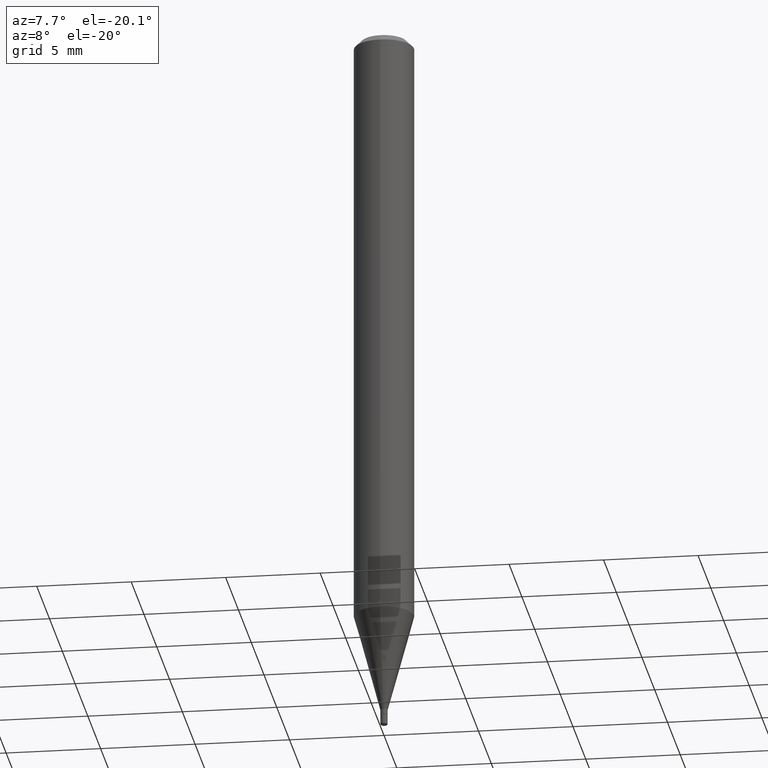
[diagram: clean part render]
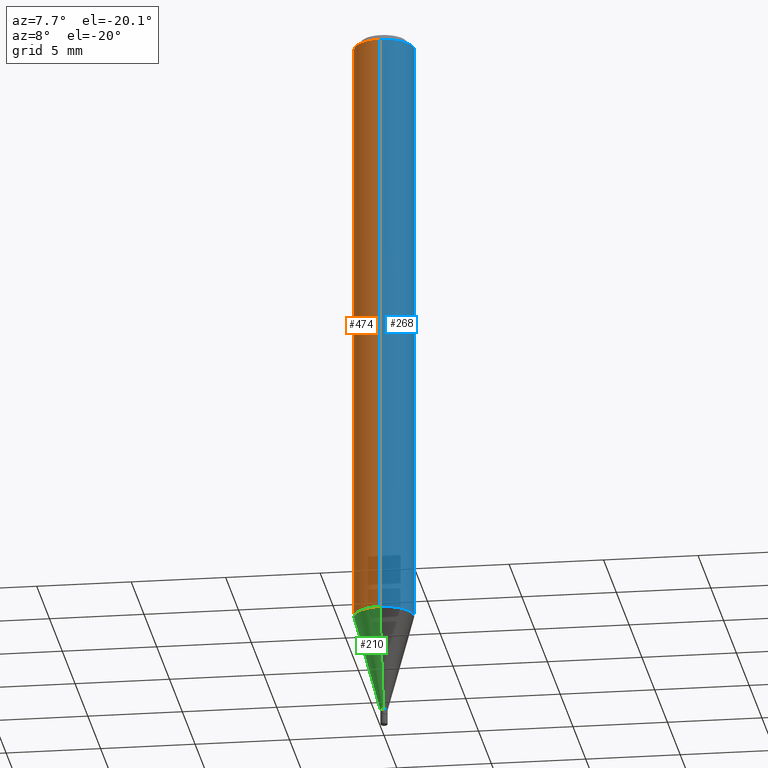
[diagram: same view with three faces highlighted in distinct colors, each labeled with its STEP entity id]
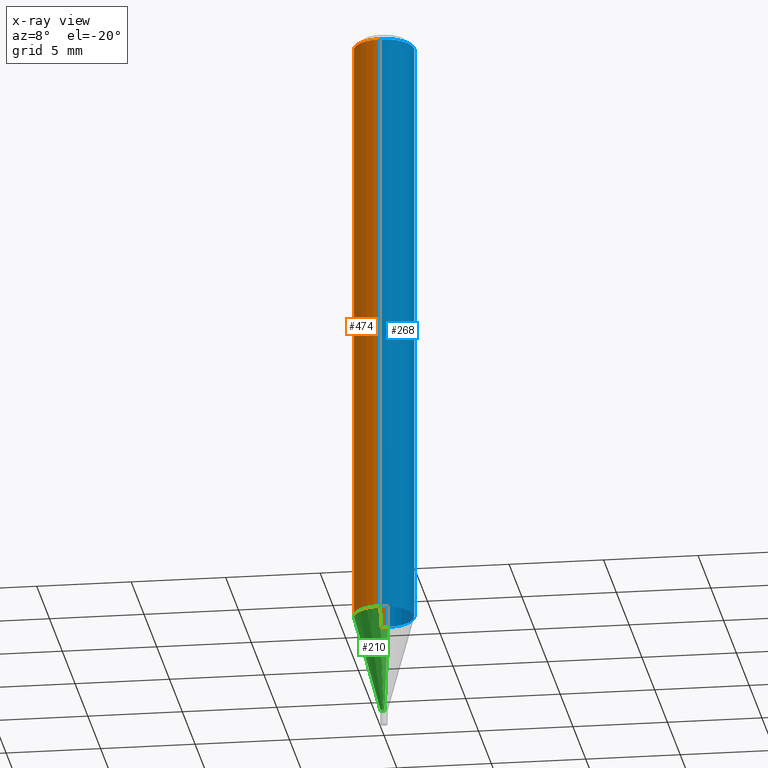
[diagram: x-ray of the same camera — body ghosted, the three highlighted faces saturated]
A machine part, auxiliary view with three faces highlighted in distinct colors.
The next image is the same camera in x-ray (body ghosted, the three faces saturated) — at least one of them is partly hidden behind the body in this view.
Their STEP definitions:

[orange] entity #474 — the highlighted cylindrical surface (edge-blend (fillet) strip) has radius 1.5875 mm, axis along (-0, 0, 1).
#1 = ORIENTED_EDGE ( 'NONE', *, *, #42, .F. ) ;
#32 = DIRECTION ( 'NONE',  ( -2.446894859695865878E-29, 3.489439149049856397E-15, 1.000000000000000000 ) ) ;
#35 = VECTOR ( 'NONE', #376, 39.37007874015748143 ) ;
#42 = EDGE_CURVE ( 'NONE', #172, #68, #394, .T. ) ;
#43 = LINE ( 'NONE', #207, #385 ) ;
#51 = DIRECTION ( 'NONE',  ( -2.446894859695865878E-29, 3.489439149049856002E-15, 1.000000000000000000 ) ) ;
#62 = FACE_OUTER_BOUND ( 'NONE', #107, .T. ) ;
#65 = VERTEX_POINT ( 'NONE', #398 ) ;
#68 = VERTEX_POINT ( 'NONE', #276 ) ;
#101 = CIRCLE ( 'NONE', #481, 0.06250000000000000000 ) ;
#107 = EDGE_LOOP ( 'NONE', ( #469, #295, #388, #1 ) ) ;
#168 = EDGE_CURVE ( 'NONE', #65, #172, #43, .T. ) ;
#172 = VERTEX_POINT ( 'NONE', #365 ) ;
#174 = DIRECTION ( 'NONE',  ( -6.982962677686265922E-15, -1.000000000000000000, 4.370956789862821150E-15 ) ) ;
#207 = CARTESIAN_POINT ( 'NONE',  ( 4.440892098500625669E-16, 0.06250000000000000000, -2.180899468156160002E-16 ) ) ;
#220 = CYLINDRICAL_SURFACE ( 'NONE', #281, 0.06250000000000000000 ) ;
#226 = CARTESIAN_POINT ( 'NONE',  ( 0.000000000000000000, 0.000000000000000000, 0.000000000000000000 ) ) ;
#246 = EDGE_CURVE ( 'NONE', #275, #68, #256, .T. ) ;
#254 = CARTESIAN_POINT ( 'NONE',  ( -4.364351673553916201E-16, -0.06250000000000000000, 2.180899468156160002E-16 ) ) ;
#256 = LINE ( 'NONE', #254, #35 ) ;
#272 = DIRECTION ( 'NONE',  ( -6.982962677686265922E-15, -1.000000000000000000, 3.489439149049856002E-15 ) ) ;
#275 = VERTEX_POINT ( 'NONE', #337 ) ;
#276 = CARTESIAN_POINT ( 'NONE',  ( -4.364351673553912750E-16, -0.06250000000000005551, -0.01499999999999948597 ) ) ;
#281 = AXIS2_PLACEMENT_3D ( 'NONE', #226, #382, #272 ) ;
#287 = EDGE_CURVE ( 'NONE', #65, #275, #101, .T. ) ;
#295 = ORIENTED_EDGE ( 'NONE', *, *, #287, .T. ) ;
#305 = AXIS2_PLACEMENT_3D ( 'NONE', #357, #478, #517 ) ;
#337 = CARTESIAN_POINT ( 'NONE',  ( -4.364351673553608052E-16, -0.06250000000000439926, -1.261737205583711940 ) ) ;
#339 = CARTESIAN_POINT ( 'NONE',  ( 3.087338282629810995E-29, -4.402755200976571001E-15, -1.261737205583712162 ) ) ;
#357 = CARTESIAN_POINT ( 'NONE',  ( 3.670342289543726037E-31, -5.234158723574680811E-17, -0.01499999999999970281 ) ) ;
#365 = CARTESIAN_POINT ( 'NONE',  ( 4.440892098500935790E-16, 0.06249999999999995143, -0.01499999999999992138 ) ) ;
#376 = DIRECTION ( 'NONE',  ( -2.446894859695865878E-29, 3.489439149049856397E-15, 1.000000000000000000 ) ) ;
#382 = DIRECTION ( 'NONE',  ( -2.446894859695865878E-29, 3.489439149049856002E-15, 1.000000000000000000 ) ) ;
#385 = VECTOR ( 'NONE', #32, 39.37007874015748143 ) ;
#388 = ORIENTED_EDGE ( 'NONE', *, *, #246, .T. ) ;
#394 = CIRCLE ( 'NONE', #305, 0.06250000000000000000 ) ;
#398 = CARTESIAN_POINT ( 'NONE',  ( 4.440892098500932831E-16, 0.06249999999999559380, -1.261737205583712385 ) ) ;
#469 = ORIENTED_EDGE ( 'NONE', *, *, #168, .F. ) ;
#474 = ADVANCED_FACE ( 'NONE', ( #62 ), #220, .T. ) ;
#478 = DIRECTION ( 'NONE',  ( -2.446894859695865878E-29, 3.489439149049856002E-15, 1.000000000000000000 ) ) ;
#481 = AXIS2_PLACEMENT_3D ( 'NONE', #339, #51, #174 ) ;
#517 = DIRECTION ( 'NONE',  ( -6.982962677686265922E-15, -1.000000000000000000, 3.483106191921935554E-15 ) ) ;

[blue] entity #268 — the highlighted cylindrical surface (edge-blend (fillet) strip) has radius 1.5875 mm, axis along (-0, 0, 1).
#7 = EDGE_LOOP ( 'NONE', ( #265, #104, #441, #200 ) ) ;
#10 = CARTESIAN_POINT ( 'NONE',  ( 0.000000000000000000, 0.000000000000000000, 0.000000000000000000 ) ) ;
#17 = DIRECTION ( 'NONE',  ( -6.982962677686265922E-15, -1.000000000000000000, 3.489439149049856002E-15 ) ) ;
#27 = CIRCLE ( 'NONE', #473, 0.06250000000000000000 ) ;
#32 = DIRECTION ( 'NONE',  ( -2.446894859695865878E-29, 3.489439149049856397E-15, 1.000000000000000000 ) ) ;
#35 = VECTOR ( 'NONE', #376, 39.37007874015748143 ) ;
#43 = LINE ( 'NONE', #207, #385 ) ;
#44 = CIRCLE ( 'NONE', #341, 0.06250000000000000000 ) ;
#55 = CARTESIAN_POINT ( 'NONE',  ( 3.087338282629810995E-29, -4.402755200976571001E-15, -1.261737205583712162 ) ) ;
#65 = VERTEX_POINT ( 'NONE', #398 ) ;
#67 = AXIS2_PLACEMENT_3D ( 'NONE', #10, #97, #17 ) ;
#68 = VERTEX_POINT ( 'NONE', #276 ) ;
#97 = DIRECTION ( 'NONE',  ( -2.446894859695865878E-29, 3.489439149049856002E-15, 1.000000000000000000 ) ) ;
#104 = ORIENTED_EDGE ( 'NONE', *, *, #168, .T. ) ;
#148 = DIRECTION ( 'NONE',  ( -6.982962677686265922E-15, -1.000000000000000000, 3.483106191921935554E-15 ) ) ;
#168 = EDGE_CURVE ( 'NONE', #65, #172, #43, .T. ) ;
#172 = VERTEX_POINT ( 'NONE', #365 ) ;
#200 = ORIENTED_EDGE ( 'NONE', *, *, #246, .F. ) ;
#207 = CARTESIAN_POINT ( 'NONE',  ( 4.440892098500625669E-16, 0.06250000000000000000, -2.180899468156160002E-16 ) ) ;
#232 = EDGE_CURVE ( 'NONE', #275, #65, #44, .T. ) ;
#246 = EDGE_CURVE ( 'NONE', #275, #68, #256, .T. ) ;
#254 = CARTESIAN_POINT ( 'NONE',  ( -4.364351673553916201E-16, -0.06250000000000000000, 2.180899468156160002E-16 ) ) ;
#256 = LINE ( 'NONE', #254, #35 ) ;
#265 = ORIENTED_EDGE ( 'NONE', *, *, #232, .T. ) ;
#268 = ADVANCED_FACE ( 'NONE', ( #410 ), #458, .T. ) ;
#275 = VERTEX_POINT ( 'NONE', #337 ) ;
#276 = CARTESIAN_POINT ( 'NONE',  ( -4.364351673553912750E-16, -0.06250000000000005551, -0.01499999999999948597 ) ) ;
#311 = CARTESIAN_POINT ( 'NONE',  ( 3.670342289543726037E-31, -5.234158723574680811E-17, -0.01499999999999970281 ) ) ;
#337 = CARTESIAN_POINT ( 'NONE',  ( -4.364351673553608052E-16, -0.06250000000000439926, -1.261737205583711940 ) ) ;
#341 = AXIS2_PLACEMENT_3D ( 'NONE', #55, #497, #413 ) ;
#365 = CARTESIAN_POINT ( 'NONE',  ( 4.440892098500935790E-16, 0.06249999999999995143, -0.01499999999999992138 ) ) ;
#376 = DIRECTION ( 'NONE',  ( -2.446894859695865878E-29, 3.489439149049856397E-15, 1.000000000000000000 ) ) ;
#380 = DIRECTION ( 'NONE',  ( -2.446894859695865878E-29, 3.489439149049856002E-15, 1.000000000000000000 ) ) ;
#385 = VECTOR ( 'NONE', #32, 39.37007874015748143 ) ;
#393 = EDGE_CURVE ( 'NONE', #68, #172, #27, .T. ) ;
#398 = CARTESIAN_POINT ( 'NONE',  ( 4.440892098500932831E-16, 0.06249999999999559380, -1.261737205583712385 ) ) ;
#410 = FACE_OUTER_BOUND ( 'NONE', #7, .T. ) ;
#413 = DIRECTION ( 'NONE',  ( -6.982962677686265922E-15, -1.000000000000000000, 4.370956789862821150E-15 ) ) ;
#441 = ORIENTED_EDGE ( 'NONE', *, *, #393, .F. ) ;
#458 = CYLINDRICAL_SURFACE ( 'NONE', #67, 0.06250000000000000000 ) ;
#473 = AXIS2_PLACEMENT_3D ( 'NONE', #311, #380, #148 ) ;
#497 = DIRECTION ( 'NONE',  ( -2.446894859695865878E-29, 3.489439149049856002E-15, 1.000000000000000000 ) ) ;

[green] entity #210 — the highlighted conical surface has half-angle 15 deg.
#13 = DIRECTION ( 'NONE',  ( -6.982962677686265922E-15, -1.000000000000000000, 0.000000000000000000 ) ) ;
#45 = ORIENTED_EDGE ( 'NONE', *, *, #50, .T. ) ;
#50 = EDGE_CURVE ( 'NONE', #203, #275, #484, .T. ) ;
#51 = DIRECTION ( 'NONE',  ( -2.446894859695865878E-29, 3.489439149049856002E-15, 1.000000000000000000 ) ) ;
#53 = AXIS2_PLACEMENT_3D ( 'NONE', #342, #60, #344 ) ;
#60 = DIRECTION ( 'NONE',  ( -2.446894859695865878E-29, 3.489439149049856002E-15, 1.000000000000000000 ) ) ;
#65 = VERTEX_POINT ( 'NONE', #398 ) ;
#71 = DIRECTION ( 'NONE',  ( 1.839019923739595582E-15, 0.2588190451025242922, 0.9659258262890673130 ) ) ;
#76 = VECTOR ( 'NONE', #71, 39.37007874015748854 ) ;
#90 = EDGE_LOOP ( 'NONE', ( #231, #503, #45, #379 ) ) ;
#94 = FACE_OUTER_BOUND ( 'NONE', #90, .T. ) ;
#96 = CIRCLE ( 'NONE', #53, 0.007500000000000010998 ) ;
#101 = CIRCLE ( 'NONE', #481, 0.06250000000000000000 ) ;
#115 = CARTESIAN_POINT ( 'NONE',  ( 5.329070518204347910E-17, 0.007499999999994891829, -1.467000000000000304 ) ) ;
#123 = CARTESIAN_POINT ( 'NONE',  ( 2.486899575160686153E-16, 0.007499999999994892697, -1.467000000000000304 ) ) ;
#132 = EDGE_CURVE ( 'NONE', #163, #65, #320, .T. ) ;
#134 = DIRECTION ( 'NONE',  ( -2.446894859695865878E-29, 3.489439149049856002E-15, 1.000000000000000000 ) ) ;
#163 = VERTEX_POINT ( 'NONE', #123 ) ;
#174 = DIRECTION ( 'NONE',  ( -6.982962677686265922E-15, -1.000000000000000000, 4.370956789862821150E-15 ) ) ;
#186 = VECTOR ( 'NONE', #362, 39.37007874015748854 ) ;
#203 = VERTEX_POINT ( 'NONE', #250 ) ;
#210 = ADVANCED_FACE ( 'NONE', ( #94 ), #298, .T. ) ;
#218 = CARTESIAN_POINT ( 'NONE',  ( 3.589594759173836037E-29, -5.119007231656140141E-15, -1.467000000000000304 ) ) ;
#231 = ORIENTED_EDGE ( 'NONE', *, *, #132, .F. ) ;
#250 = CARTESIAN_POINT ( 'NONE',  ( -5.237222008261117372E-17, -0.007500000000005129300, -1.467000000000000304 ) ) ;
#275 = VERTEX_POINT ( 'NONE', #337 ) ;
#286 = CARTESIAN_POINT ( 'NONE',  ( -5.237222008261117372E-17, -0.007500000000005129300, -1.467000000000000304 ) ) ;
#287 = EDGE_CURVE ( 'NONE', #65, #275, #101, .T. ) ;
#298 = CONICAL_SURFACE ( 'NONE', #494, 0.007500000000000010998, 0.2617993877991495744 ) ;
#320 = LINE ( 'NONE', #115, #76 ) ;
#337 = CARTESIAN_POINT ( 'NONE',  ( -4.364351673553608052E-16, -0.06250000000000439926, -1.261737205583711940 ) ) ;
#339 = CARTESIAN_POINT ( 'NONE',  ( 3.087338282629810995E-29, -4.402755200976571001E-15, -1.261737205583712162 ) ) ;
#342 = CARTESIAN_POINT ( 'NONE',  ( 3.589594759173836037E-29, -5.119007231656140141E-15, -1.467000000000000304 ) ) ;
#344 = DIRECTION ( 'NONE',  ( -6.982962677686265922E-15, -1.000000000000000000, 0.000000000000000000 ) ) ;
#362 = DIRECTION ( 'NONE',  ( -1.807323732225325406E-15, -0.2588190451025175198, 0.9659258262890690894 ) ) ;
#379 = ORIENTED_EDGE ( 'NONE', *, *, #287, .F. ) ;
#398 = CARTESIAN_POINT ( 'NONE',  ( 4.440892098500932831E-16, 0.06249999999999559380, -1.261737205583712385 ) ) ;
#414 = EDGE_CURVE ( 'NONE', #163, #203, #96, .T. ) ;
#481 = AXIS2_PLACEMENT_3D ( 'NONE', #339, #51, #174 ) ;
#484 = LINE ( 'NONE', #286, #186 ) ;
#494 = AXIS2_PLACEMENT_3D ( 'NONE', #218, #134, #13 ) ;
#503 = ORIENTED_EDGE ( 'NONE', *, *, #414, .T. ) ;